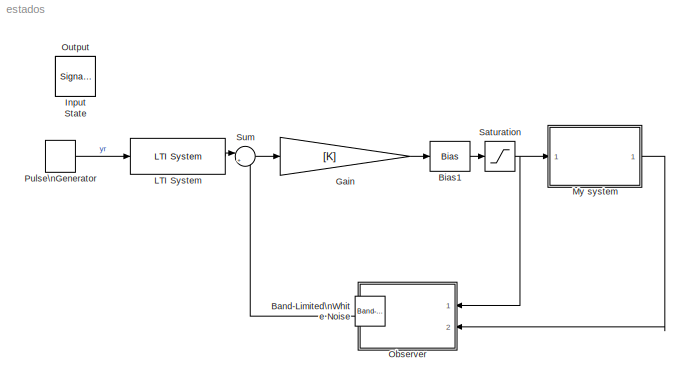
MODEL estados
KIND model
BLOCK [Reference] Band-Limited\nWhite Noise  REF=simulink/Sources/Band-Limited\nWhite Noise
  Cov = Noise_step
  IOType = siggen
  Ports = [0, 1]
  SID = 12
  SourceBlock = simulink/Sources/Band-Limited\nWhite Noise
  SourceType = Band-Limited White Noise.
  Ts = Sample_time
  VectorParams1D = on
  seed = [23341]
BLOCK [Bias] Bias1
  SID = 24
  SaturateOnIntegerOverflow = off
BLOCK [Gain] Gain
  Gain = [K]
  Multiplication = Matrix(K*u) (u vector)
  OutDataTypeStr = Inherit: Inherit via internal rule
  ParamDataTypeStr = Inherit: Inherit via internal rule
  SID = 19
  SaturateOnIntegerOverflow = off
BLOCK [SignalViewerScope] Input
  IOType = viewer
  LimitDataPoints = off
  MaxDataPoints = 7500
  NumInputPorts = 1
  Ports = []
  RefreshTime = 0.035000
  SID = 17
  SaveName = ScopeData2
  ShowDataMarkers = off
  ShowLegends = on
  TimeRange = 40
  YMax = 0.45
  YMin = -0.4
BLOCK [Reference] LTI System  REF=cstblocks/LTI System
  IC = []
  Ports = [1, 1]
  SID = 39
  SourceBlock = cstblocks/LTI System
  SourceType = LTI Block
  sys = M
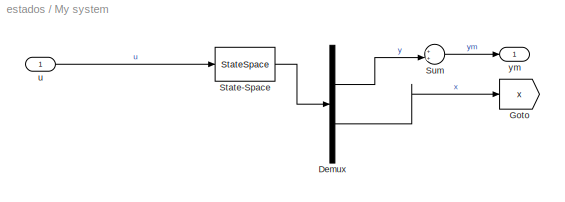
BLOCK [SubSystem] My system
  FunctionWithSeparateData = off
  MaskHideContents = off
  MinAlgLoopOccurrences = off
  Opaque = off
  Ports = [1, 1]
  PropExecContextOutsideSubsystem = off
  RTWSystemCode = Auto
  RequestExecContextInheritance = off
  SID = 1
BLOCK [Demux] My system/Demux
  DisplayOption = bar
  Outputs = [1 3]
  Ports = [1, 2]
  SID = 3
BLOCK [Goto] My system/Goto
  GotoTag = x
  SID = 37
  TagVisibility = global
BLOCK [StateSpace] My system/State-Space
  A = A
  B = B
  C = [C; eye(3)]
  D = zeros(4,1)
  SID = 6
  X0 = zeros(3,1)
BLOCK [Sum] My system/Sum
  IconShape = round
  InputSameDT = off
  Inputs = ++|
  OutDataTypeStr = Inherit: Inherit via internal rule
  Ports = [2, 1]
  SID = 7
  SaturateOnIntegerOverflow = off
BLOCK [Inport] My system/u
  IconDisplay = Port number
  SID = 2
BLOCK [Outport] My system/ym
  IconDisplay = Port number
  SID = 9
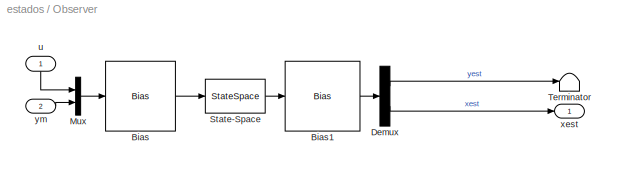
BLOCK [SubSystem] Observer
  FunctionWithSeparateData = off
  MaskHideContents = off
  MinAlgLoopOccurrences = off
  Opaque = off
  Ports = [2, 1]
  PropExecContextOutsideSubsystem = off
  RTWSystemCode = Auto
  RequestExecContextInheritance = off
  SID = 25
BLOCK [Bias] Observer/Bias
  Bias = [-0; -0]
  SID = 34
  SaturateOnIntegerOverflow = off
BLOCK [Bias] Observer/Bias1
  Bias = [zeros(3,1); 0]
  SID = 35
  SaturateOnIntegerOverflow = off
BLOCK [Demux] Observer/Demux
  DisplayOption = bar
  Outputs = [1 3]
  Ports = [1, 2]
  SID = 28
BLOCK [Mux] Observer/Mux
  DisplayOption = bar
  Inputs = 2
  Ports = [2, 1]
  SID = 29
BLOCK [StateSpace] Observer/State-Space
  A = A-L*C
  B = [B L]
  C = [C; eye(3)]
  D = zeros(4,2)
  SID = 30
  X0 = [1; 0; 0]
BLOCK [Terminator] Observer/Terminator
  SID = 31
BLOCK [Inport] Observer/u
  IconDisplay = Port number
  SID = 26
BLOCK [Outport] Observer/xest
  IconDisplay = Port number
  SID = 32
BLOCK [Inport] Observer/ym
  IconDisplay = Port number
  Port = 2
  SID = 27
BLOCK [SignalViewerScope] Output
  IOType = viewer
  LimitDataPoints = off
  MaxDataPoints = 7500
  NumInputPorts = 2
  Ports = []
  RefreshTime = 0.035000
  SID = 14
  SaveName = ScopeData1
  ShowDataMarkers = off
  ShowLegends = on
  TimeRange = 40
  YMax = 2.25~2.25
  YMin = -2~-2
BLOCK [DiscretePulseGenerator] Pulse\nGenerator
  Period = 4
  Ports = [0, 1]
  PulseType = Time based
  PulseWidth = 50
  SID = 42
BLOCK [Saturate] Saturation
  InputPortMap = u0
  LowerLimit = -10
  Ports = [1, 1]
  SID = 44
  UpperLimit = 10
BLOCK [SignalViewerScope] State
  IOType = viewer
  LimitDataPoints = off
  MaxDataPoints = 7500
  NumInputPorts = 1
  Ports = []
  RefreshTime = 0.035000
  SID = 13
  ShowDataMarkers = off
  ShowLegends = on
  TimeRange = 40
  YMax = 0.45
  YMin = -0.4
BLOCK [Sum] Sum
  IconShape = round
  InputSameDT = off
  Inputs = |+-
  OutDataTypeStr = Inherit: Inherit via internal rule
  Ports = [2, 1]
  SID = 40
  SaturateOnIntegerOverflow = off
LINE Bias1:1 -> Saturation:1
LINE Gain:1 -> Bias1:1
LINE LTI System:1 -> Sum:1
LINE My system/Demux:1 -> My system/Sum:2
LINE My system/Demux:2 -> My system/Goto:1
LINE My system/State-Space:1 -> My system/Demux:1
LINE My system/Sum:1 -> My system/ym:1
LINE My system/u:1 -> My system/State-Space:1
LINE My system:1 -> Observer:2
LINE Observer/Bias1:1 -> Observer/Demux:1
LINE Observer/Bias:1 -> Observer/State-Space:1
LINE Observer/Demux:1 -> Observer/Terminator:1
LINE Observer/Demux:2 -> Observer/xest:1
LINE Observer/Mux:1 -> Observer/Bias:1
LINE Observer/State-Space:1 -> Observer/Bias1:1
LINE Observer/u:1 -> Observer/Mux:1
LINE Observer/ym:1 -> Observer/Mux:2
LINE Observer:1 -> Sum:2
LINE Pulse\nGenerator:1 -> LTI System:1
NET Saturation:1 -> My system:1, Observer:1
LINE Sum:1 -> Gain:1
note: NET lines group one-source signal fan-out (src -> all destinations, sorted); 1:1 wires keep LINE
